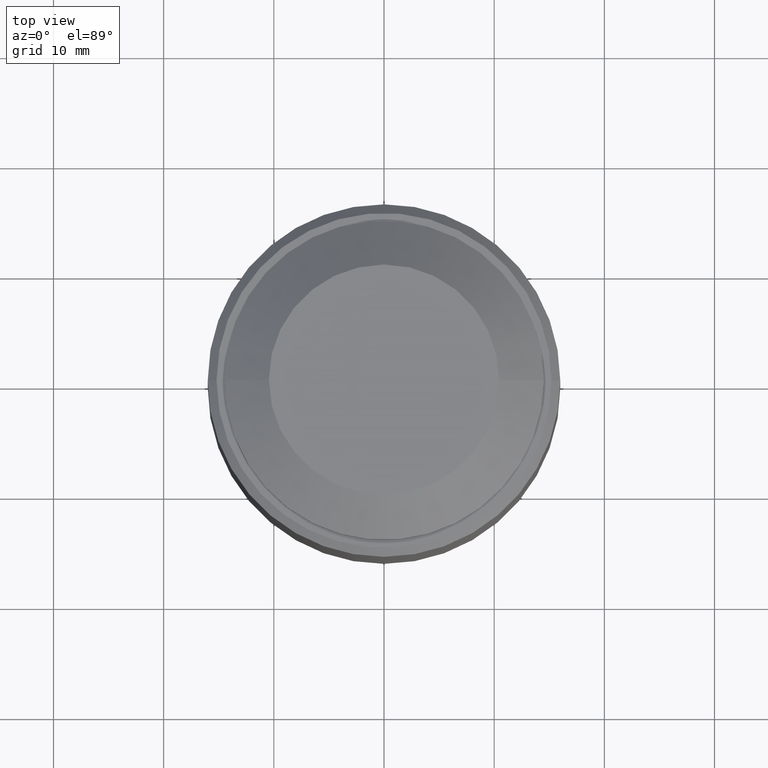
[diagram: clean part render]
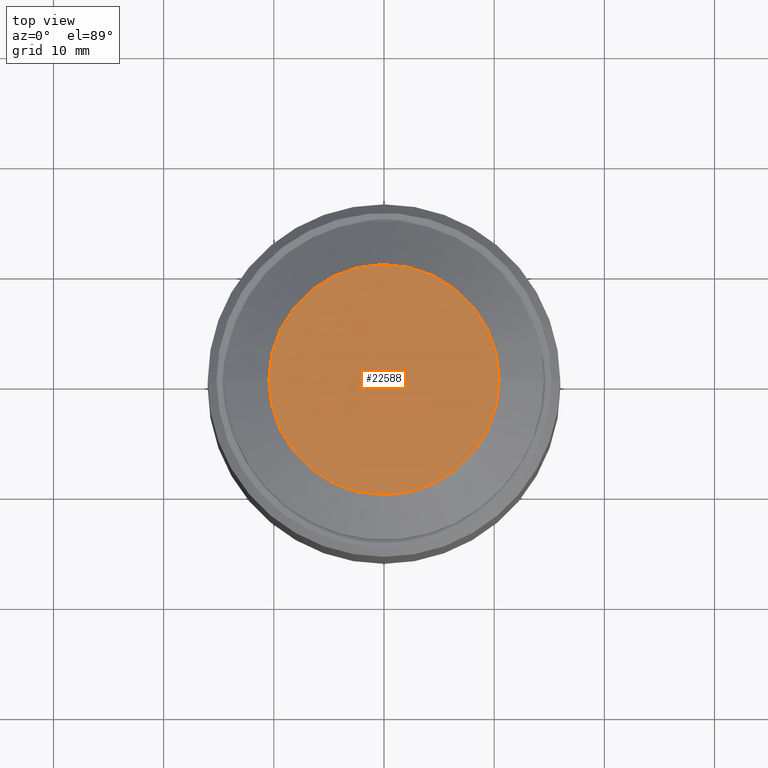
[diagram: same view with one face highlighted and labeled with its STEP entity id]
A machine part, top view. The second image highlights one B-rep face of the part: STEP entity #22588.
In plain terms, the highlighted planar face has unit normal (0, 0, 1).
Its self-contained STEP definition (entity closure, byte-faithful):
#1422 = FACE_OUTER_BOUND ( 'NONE', #18564, .T. ) ;
#1911 = ORIENTED_EDGE ( 'NONE', *, *, #6510, .T. ) ;
#2265 = AXIS2_PLACEMENT_3D ( 'NONE', #28003, #21402, #22064 ) ;
#3438 = PLANE ( 'NONE',  #24530 ) ;
#3529 = DIRECTION ( 'NONE',  ( 1.000000000000000000, 0.000000000000000000, 0.000000000000000000 ) ) ;
#4998 = CIRCLE ( 'NONE', #9573, 10.44999999999999929 ) ;
#5669 = DIRECTION ( 'NONE',  ( 0.000000000000000000, 0.000000000000000000, 1.000000000000000000 ) ) ;
#5728 = CARTESIAN_POINT ( 'NONE',  ( -10.44999999999999929, 0.000000000000000000, 48.54300000000000637 ) ) ;
#6010 = DIRECTION ( 'NONE',  ( 0.000000000000000000, 0.000000000000000000, 1.000000000000000000 ) ) ;
#6510 = EDGE_CURVE ( 'NONE', #24893, #25355, #16008, .T. ) ;
#9573 = AXIS2_PLACEMENT_3D ( 'NONE', #25342, #5669, #3529 ) ;
#16008 = CIRCLE ( 'NONE', #2265, 10.44999999999999929 ) ;
#18564 = EDGE_LOOP ( 'NONE', ( #22930, #1911 ) ) ;
#19216 = CARTESIAN_POINT ( 'NONE',  ( 0.000000000000000000, 0.000000000000000000, 48.54300000000000637 ) ) ;
#19238 = EDGE_CURVE ( 'NONE', #25355, #24893, #4998, .T. ) ;
#21402 = DIRECTION ( 'NONE',  ( 0.000000000000000000, 0.000000000000000000, 1.000000000000000000 ) ) ;
#22064 = DIRECTION ( 'NONE',  ( 1.000000000000000000, 0.000000000000000000, 0.000000000000000000 ) ) ;
#22588 = ADVANCED_FACE ( 'NONE', ( #1422 ), #3438, .T. ) ;
#22930 = ORIENTED_EDGE ( 'NONE', *, *, #19238, .T. ) ;
#23027 = CARTESIAN_POINT ( 'NONE',  ( 10.44999999999999929, 1.527746881936322985E-15, 48.54300000000000637 ) ) ;
#24530 = AXIS2_PLACEMENT_3D ( 'NONE', #19216, #6010, #25396 ) ;
#24893 = VERTEX_POINT ( 'NONE', #23027 ) ;
#25342 = CARTESIAN_POINT ( 'NONE',  ( 0.000000000000000000, 0.000000000000000000, 48.54300000000000637 ) ) ;
#25355 = VERTEX_POINT ( 'NONE', #5728 ) ;
#25396 = DIRECTION ( 'NONE',  ( 1.000000000000000000, 0.000000000000000000, 0.000000000000000000 ) ) ;
#28003 = CARTESIAN_POINT ( 'NONE',  ( 0.000000000000000000, 0.000000000000000000, 48.54300000000000637 ) ) ;